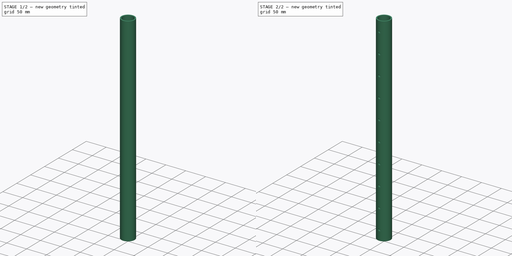
[diagram: build sequence overview — one tinted view per stage of 2, left to right]
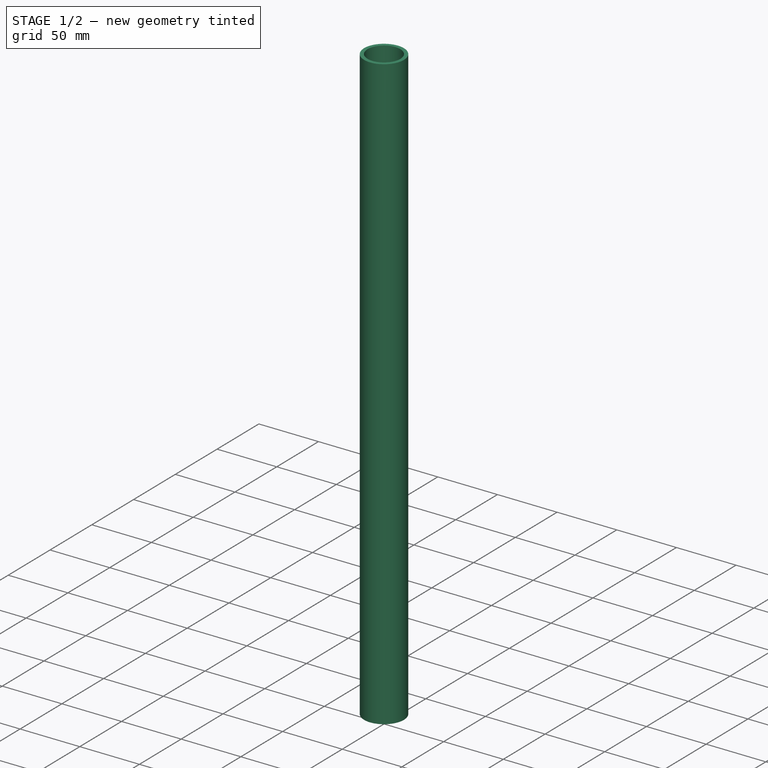
[diagram: stage 1 of 2 — iso view after this stage's code; geometry added in this stage tinted green]
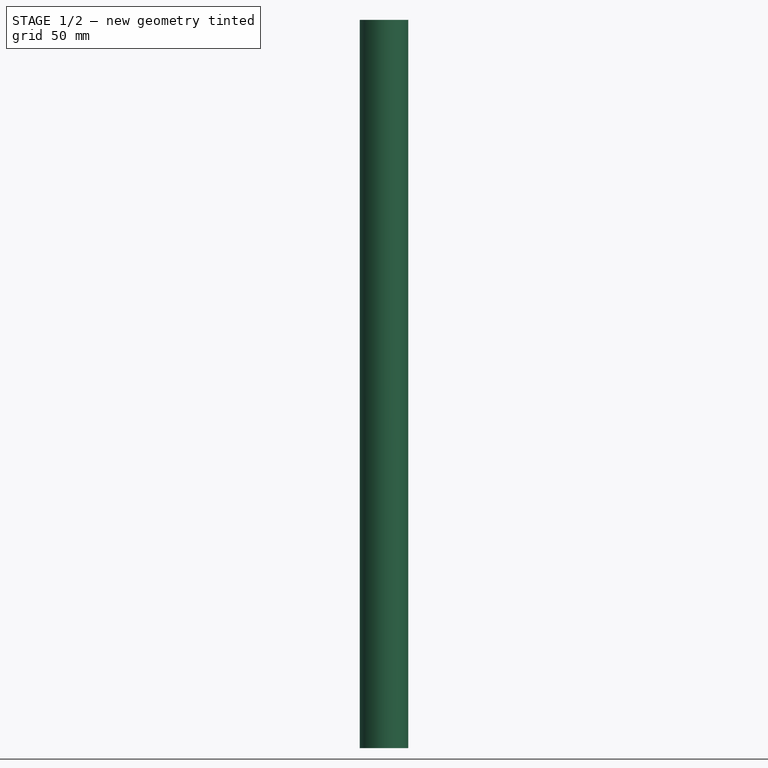
[diagram: stage 1 of 2 — front view after this stage's code; geometry added in this stage tinted green]
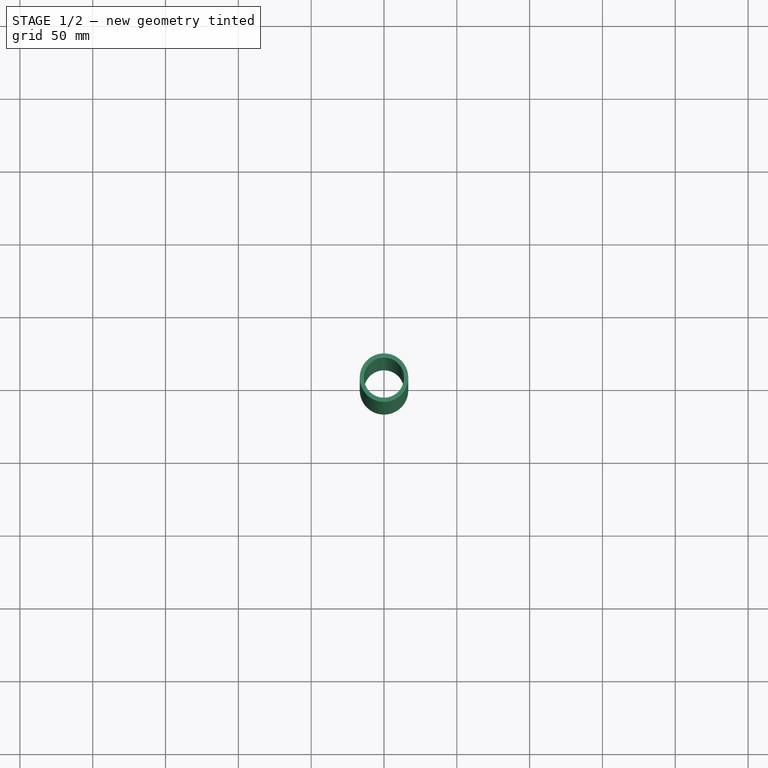
[diagram: stage 1 of 2 — top view after this stage's code; geometry added in this stage tinted green]
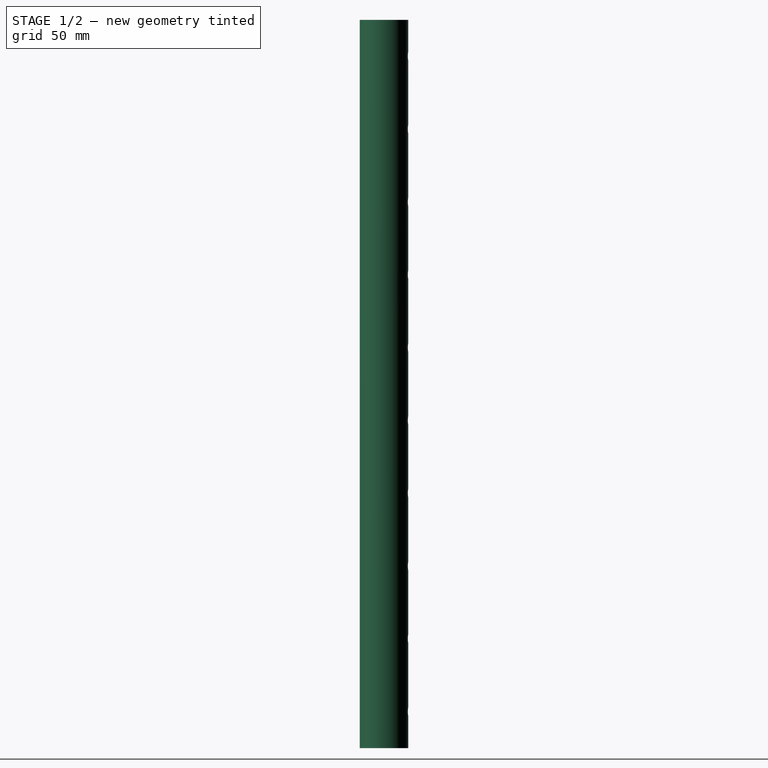
[diagram: stage 1 of 2 — right view after this stage's code; geometry added in this stage tinted green]
FCSTD DOCUMENT  (FreeCAD 0.18R4 (GitTag))
Label: ID-005-00-MRS
License: All rights reserved
LicenseURL: http://en.wikipedia.org/wiki/All_rights_reserved
objects: Sketcher::SketchObject×2, PartDesign::Pad×1, PartDesign::Hole×1, PartDesign::Mirrored×1, PartDesign::Body×1
note: 8 computed .brp shape members not serialized (recipe doc carries the construction recipe); baked Part::Feature solids carry a one-line shape summary decoded from their .brp

FEATURE [Sketcher::SketchObject] Sketch
  MapMode = 5
  Support = -> [XY_Plane]
  sketch-geometry (2):
    g0: Circle CenterX=0 CenterY=0 CenterZ=0 NormalX=0 NormalY=0 NormalZ=1 AngleXU=0 Radius=16.65
    g1: Circle CenterX=0 CenterY=0 CenterZ=0 NormalX=0 NormalY=0 NormalZ=1 AngleXU=0 Radius=13.75
  constraints (4):
    c: Radius(g0) = 16.65
    c: Coincident(g0,g-1)
    c: Coincident(g0,g1)
    c: Radius(g1) = 13.75
FEATURE [PartDesign::Pad] Pad
  Length = 500
  Length2 = 100
  Midplane = true
  Profile = -> Sketch
  Type = 0
FEATURE [Sketcher::SketchObject] Sketch001
  MapMode = 5
  Placement = pos=(0,0,0) rot=(1,0,0;1.5708rad)
  Support = -> [XZ_Plane]
  sketch-geometry (19):
    g0: Circle CenterX=0 CenterY=-225 CenterZ=0 NormalX=0 NormalY=0 NormalZ=1 AngleXU=0 Radius=4.25
    g1: Circle CenterX=3.1e-15 CenterY=-175 CenterZ=0 NormalX=0 NormalY=0 NormalZ=1 AngleXU=0 Radius=4.25
    g2: LineSegment [constr] StartX=0 StartY=-225 StartZ=0 EndX=3.1e-15 EndY=-175 EndZ=0
    g3: Circle CenterX=6.2e-15 CenterY=-125 CenterZ=0 NormalX=0 NormalY=0 NormalZ=1 AngleXU=0 Radius=4.25
    g4: LineSegment [constr] StartX=3.1e-15 StartY=-175 StartZ=0 EndX=6.2e-15 EndY=-125 EndZ=0
    g5: Circle CenterX=9.3e-15 CenterY=-75 CenterZ=0 NormalX=0 NormalY=0 NormalZ=1 AngleXU=0 Radius=4.25
    g6: LineSegment [constr] StartX=6.2e-15 StartY=-125 StartZ=0 EndX=9.3e-15 EndY=-75 EndZ=0
    g7: Circle CenterX=1.24e-14 CenterY=-25 CenterZ=0 NormalX=0 NormalY=0 NormalZ=1 AngleXU=0 Radius=4.25
    g8: LineSegment [constr] StartX=9.3e-15 StartY=-75 StartZ=0 EndX=1.24e-14 EndY=-25 EndZ=0
    g9: Circle CenterX=1.55e-14 CenterY=25 CenterZ=0 NormalX=0 NormalY=0 NormalZ=1 AngleXU=0 Radius=4.25
    g10: LineSegment [constr] StartX=1.24e-14 StartY=-25 StartZ=0 EndX=1.55e-14 EndY=25 EndZ=0
    g11: Circle CenterX=1.85e-14 CenterY=75 CenterZ=0 NormalX=0 NormalY=0 NormalZ=1 AngleXU=0 Radius=4.25
    g12: LineSegment [constr] StartX=1.55e-14 StartY=25 StartZ=0 EndX=1.85e-14 EndY=75 EndZ=0
    g13: Circle CenterX=2.16e-14 CenterY=125 CenterZ=0 NormalX=0 NormalY=0 NormalZ=1 AngleXU=0 Radius=4.25
    g14: LineSegment [constr] StartX=1.85e-14 StartY=75 StartZ=0 EndX=2.16e-14 EndY=125 EndZ=0
    g15: Circle CenterX=2.47e-14 CenterY=175 CenterZ=0 NormalX=0 NormalY=0 NormalZ=1 AngleXU=0 Radius=4.25
    g16: LineSegment [constr] StartX=2.16e-14 StartY=125 StartZ=0 EndX=2.47e-14 EndY=175 EndZ=0
    g17: Circle CenterX=2.78e-14 CenterY=225 CenterZ=0 NormalX=0 NormalY=0 NormalZ=1 AngleXU=0 Radius=4.25
    g18: LineSegment [constr] StartX=2.47e-14 StartY=175 StartZ=0 EndX=2.78e-14 EndY=225 EndZ=0
  constraints (48):
    c: PointOnObject(g0,g-2)
    c: Diameter(g0) = 8.5
    c: Diameter(g1) = 8.5
    c: Coincident(g0,g2)
    c: Coincident(g1,g2)
    c: Distance(g2) = 50
    c: Angle(g2) = 1.5708
    c: Diameter(g3) = 8.5
    c: Coincident(g1,g4)
    c: Coincident(g3,g4)
    c: Equal(g2,g4)
    c: Parallel(g4,g2)
    c: Diameter(g5) = 8.5
    c: Coincident(g3,g6)
    c: Coincident(g5,g6)
    c: Equal(g2,g6)
    c: Parallel(g6,g2)
    c: Diameter(g7) = 8.5
    c: Coincident(g5,g8)
    c: Coincident(g7,g8)
    c: Equal(g2,g8)
    c: Parallel(g8,g2)
    c: Diameter(g9) = 8.5
    c: Coincident(g7,g10)
    c: Coincident(g9,g10)
    c: Equal(g2,g10)
    c: Parallel(g10,g2)
    c: Diameter(g11) = 8.5
    c: Coincident(g9,g12)
    c: Coincident(g11,g12)
    c: Equal(g2,g12)
    c: Parallel(g12,g2)
    c: Diameter(g13) = 8.5
    c: Coincident(g11,g14)
    c: Coincident(g13,g14)
    c: Equal(g2,g14)
    c: Parallel(g14,g2)
    c: Diameter(g15) = 8.5
    c: Coincident(g13,g16)
    c: Coincident(g15,g16)
    c: Equal(g2,g16)
    c: Parallel(g16,g2)
    c: Diameter(g17) = 8.5
    c: Coincident(g15,g18)
    c: Coincident(g17,g18)
    c: Equal(g2,g18)
    c: Parallel(g18,g2)
    c: DistanceY(g0,g-1) = 225
FEATURE [PartDesign::Hole] Hole
  BaseFeature = -> Pad
  Depth = 25
  DepthType = 1
  Diameter = 6
  DrillPoint = 1
  DrillPointAngle = 118
  HoleCutCountersinkAngle = 90
  HoleCutDepth = 0
  HoleCutDiameter = 0
  HoleCutType = 0
  ModelActualThread = false
  Profile = -> Sketch001
  Tapered = false
  TaperedAngle = 90
  ThreadAngle = 0
  ThreadClass = 0
  ThreadCutOffInner = 0
  ThreadCutOffOuter = 0
  ThreadDirection = 0
  ThreadFit = 0
  ThreadPitch = 0
  ThreadSize = 0
  ThreadType = 0
  Threaded = false
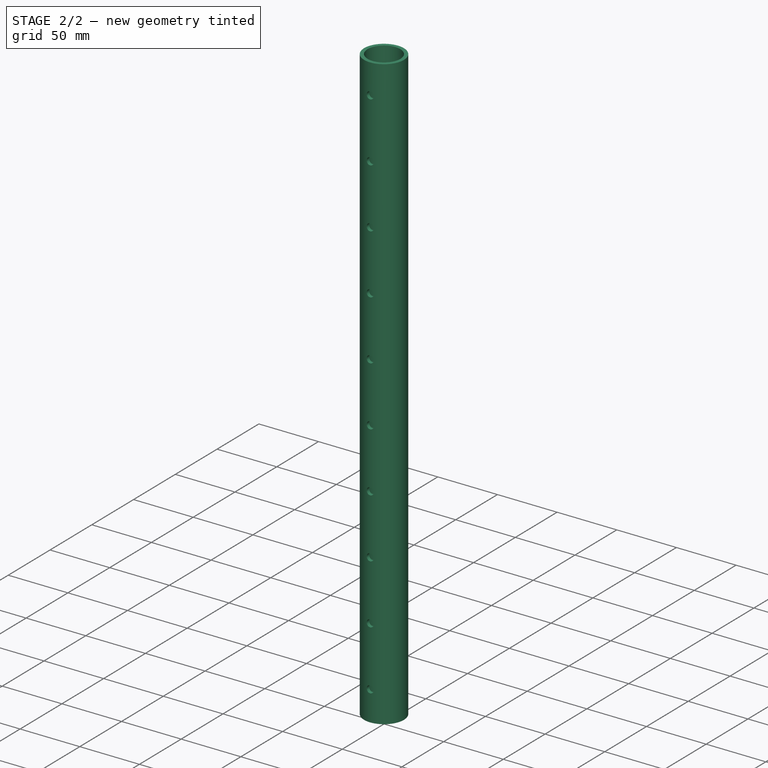
[diagram: stage 2 of 2 — iso view after this stage's code; geometry added in this stage tinted green]
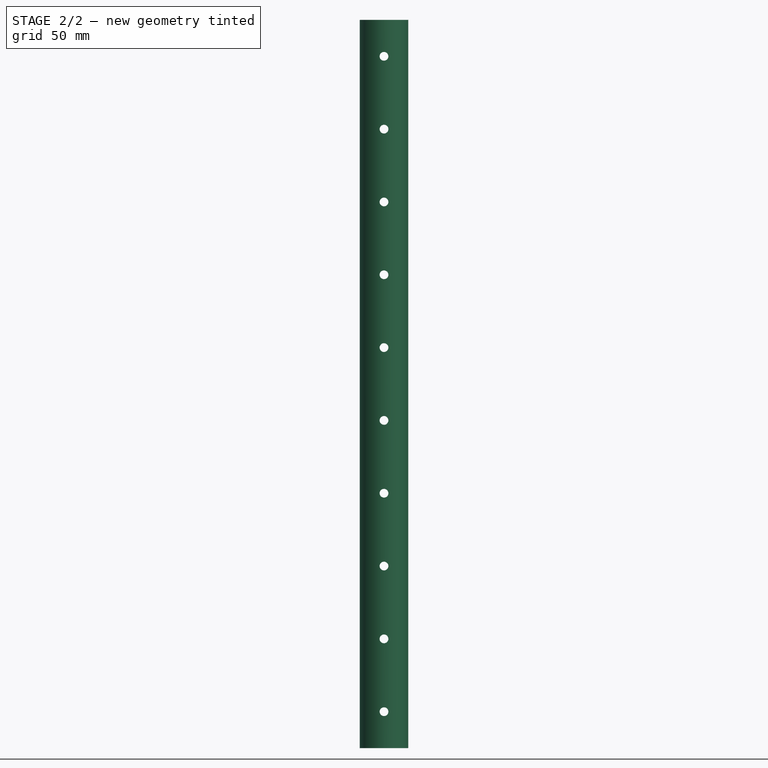
[diagram: stage 2 of 2 — front view after this stage's code; geometry added in this stage tinted green]
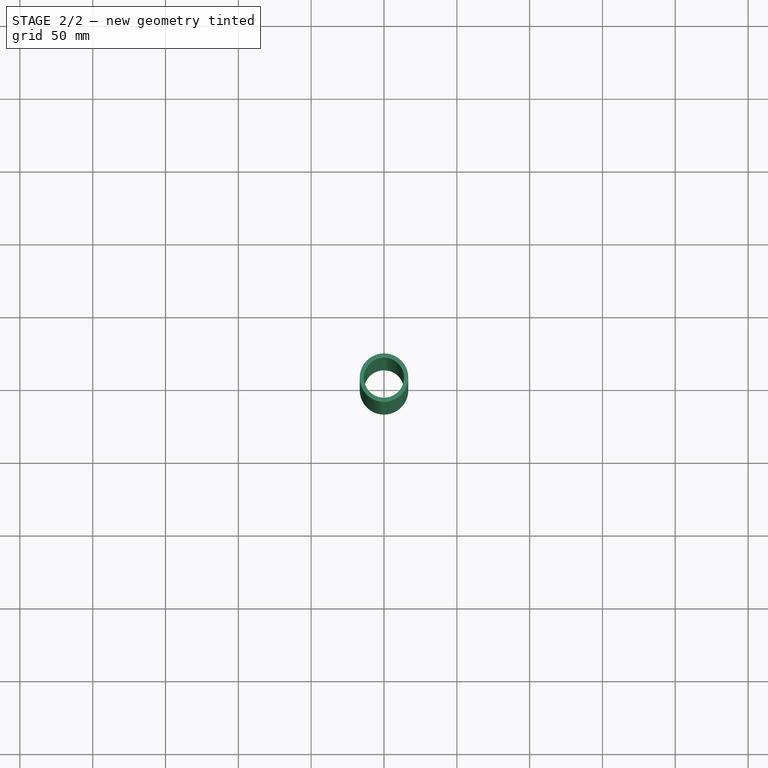
[diagram: stage 2 of 2 — top view after this stage's code; geometry added in this stage tinted green]
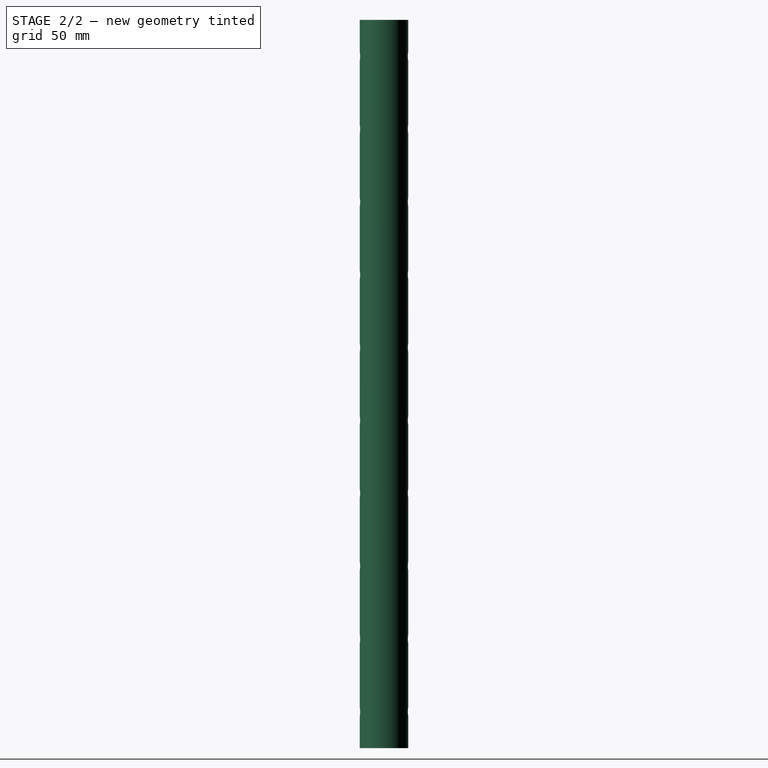
[diagram: stage 2 of 2 — right view after this stage's code; geometry added in this stage tinted green]
FEATURE [PartDesign::Mirrored] Mirrored
  BaseFeature = -> Hole
  MirrorPlane = -> XZ_Plane
  Originals = -> [Hole]
FEATURE [PartDesign::Body] Body  label="Tubo DN 25"
  Group = -> [Sketch,Pad,Sketch001,Hole,Mirrored]
  Origin = -> Origin
  Tip = -> Mirrored
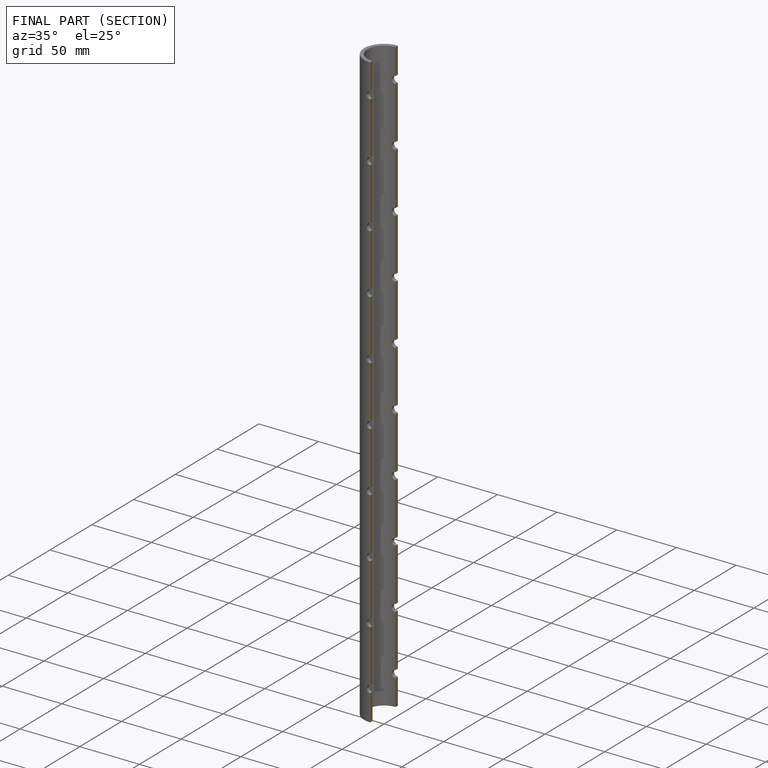
[diagram: finished part — half-section view (interior)]
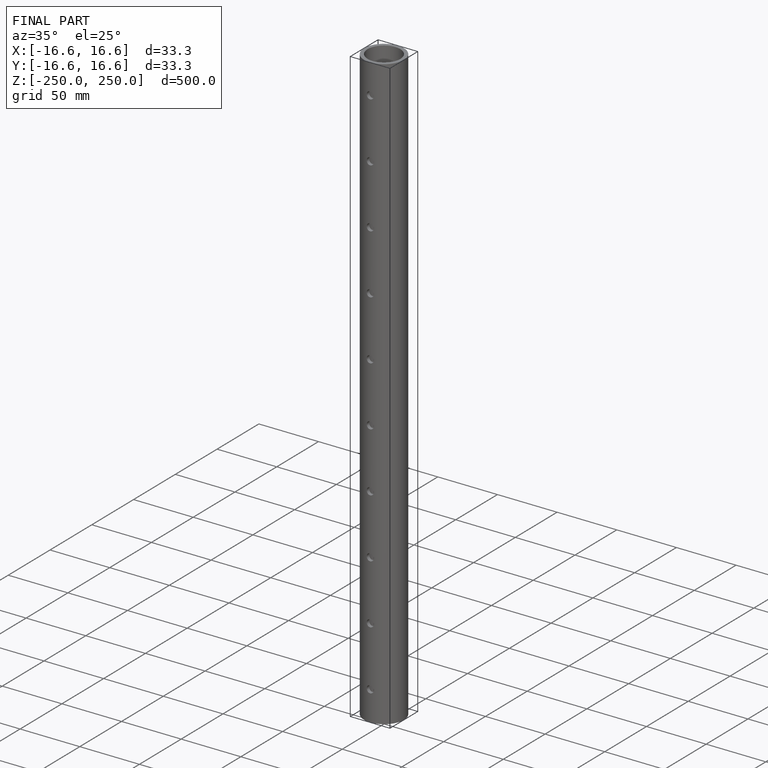
[diagram: finished part — iso view with bounding-box wireframe]
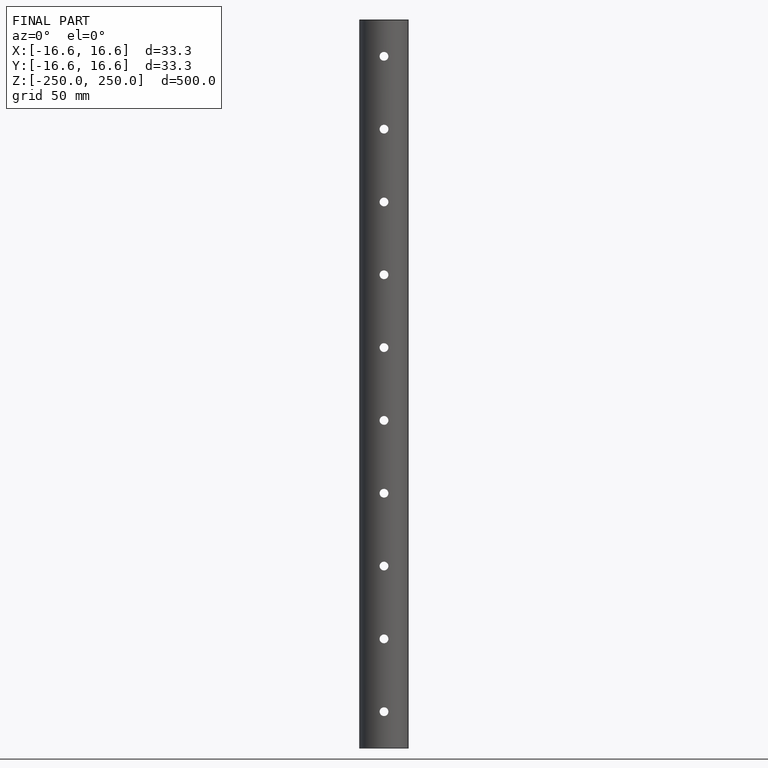
[diagram: finished part — front view with bounding-box wireframe]
